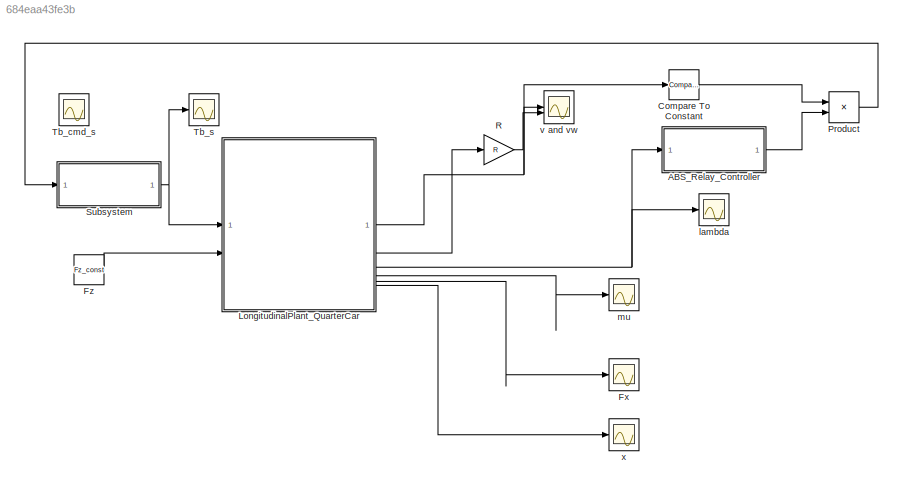
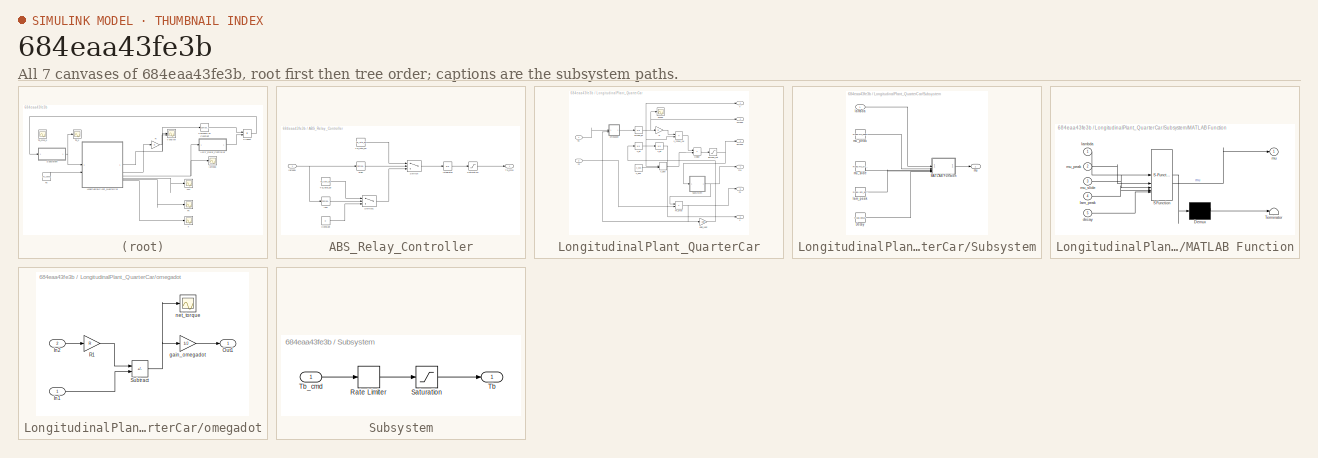
[diagram: thumbnail index - all 7 canvases of the model, root first then tree order]
MODEL slx_684eaa43fe3b
KIND model
CONFIG AbsTol = auto
CONFIG EnableMultiTasking = off
CONFIG FixedStep = auto
CONFIG InitFcn = run('LongitudinalABS.m')\n
CONFIG MaxStep = auto
CONFIG MinStep = auto
CONFIG RelTol = 1e-3
CONFIG SampleTimeConstraint = Unconstrained
CONFIG SolverName = VariableStepAuto
CONFIG StartTime = 0.0
CONFIG StopTime = 10.0
BLOCK [SubSystem] ABS_Relay_Controller
BLOCK [Constant] ABS_Relay_Controller/Constant
  Value = 0
BLOCK [Integrator] ABS_Relay_Controller/Integrator
BLOCK [Saturate] ABS_Relay_Controller/Saturation
  LowerLimit = 0
  UpperLimit = Tb_max
BLOCK [Switch] ABS_Relay_Controller/Switch
  Criteria = u2 > Threshold
  InputSameDT = off
  SaturateOnIntegerOverflow = off
  Threshold = 0.5
BLOCK [Switch] ABS_Relay_Controller/Switch1
  Criteria = u2 > Threshold
  InputSameDT = off
  SaturateOnIntegerOverflow = off
  Threshold = 0.5
BLOCK [Outport] ABS_Relay_Controller/Tb_cmd
BLOCK [Constant] ABS_Relay_Controller/Tb_rate_dn
  Value = Tb_rate_dn
BLOCK [Constant] ABS_Relay_Controller/Tb_rate_up
  Value = Tb_rate_up
BLOCK [Reference] ABS_Relay_Controller/high  REF=simulink/Logic and Bit
Operations/Compare
To Constant
  SourceBlock = simulink/Logic and Bit\nOperations/Compare\nTo Constant
  SourceType = Compare To Constant
BLOCK [Inport] ABS_Relay_Controller/lambda
BLOCK [Reference] ABS_Relay_Controller/low  REF=simulink/Logic and Bit
Operations/Compare
To Constant
  SourceBlock = simulink/Logic and Bit\nOperations/Compare\nTo Constant
  SourceType = Compare To Constant
BLOCK [Reference] Compare To Constant  REF=simulink/Logic and Bit
Operations/Compare
To Constant
  SourceBlock = simulink/Logic and Bit\nOperations/Compare\nTo Constant
  SourceType = Compare To Constant
BLOCK [Scope] Fx
  ActiveDisplayYMaximum = 4124.6604607848822
  ActiveDisplayYMinimum = -458.29560675387569
  DataLoggingVariableName = ScopeData4
  Floating = off
  GraphicalSettings = {"Style":{"BackgroundColor":[0.12941176470588237,0.12941176470588237,0.12941176470588237],"AxesColor":[0.07058823529411765,0.07058823529411765,0.07058823529411765],"LabelsColor":[0.8509803921568627,0.8509803921568627,0.8509803921568627],"PreserveColors":false,"Visible":[true],"LineStyle":["-"],"LineWidth":[1.5],"BarWidth":[0.9],"LineColor":["auto"],"LineFaceAlpha":[1],"LineEdgeAlpha":[1],"Marker":...<+2043ch>
  MultipleDisplayCache = [{"MaxYLimMag":4124.6604607848822,"MaxYLimReal":4124.6604607848822,"MinYLimMag":0,"MinYLimReal":-458.29560675387569,"PlotAsMagnitudePhase":false,"ShowGrid":true,"ShowLegend":false,"Title":"%<SignalLabel>","YLabel":""}]
  NumInputPorts = 1
  ScopeFrameLocation = window
  WasSavedAsWebScope = on
  WindowPosition = [573.000000,323.000000,560.000000,420.000000,]
BLOCK [Constant] Fz
  Value = Fz_const
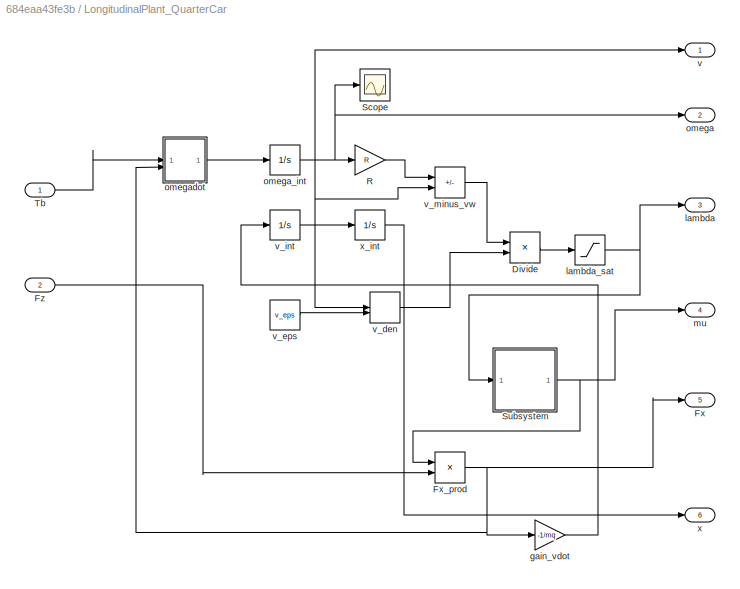
BLOCK [SubSystem] LongitudinalPlant_QuarterCar
BLOCK [Product] LongitudinalPlant_QuarterCar/Divide
  Inputs = */
BLOCK [Outport] LongitudinalPlant_QuarterCar/Fx
  Port = 5
BLOCK [Product] LongitudinalPlant_QuarterCar/Fx_prod
BLOCK [Inport] LongitudinalPlant_QuarterCar/Fz
  Port = 2
BLOCK [Gain] LongitudinalPlant_QuarterCar/R
  Gain = R
BLOCK [Scope] LongitudinalPlant_QuarterCar/Scope
  ActiveDisplayYMaximum = 104.1888196594448
  ActiveDisplayYMinimum = -6.0492755786504944
  DataLoggingVariableName = ScopeData6
  Floating = off
  GraphicalSettings = {"AxesScalingProperties":{"AlignXAxis":"Center","AlignYAxis":"Center","AutoScaleXAxisLimits":false,"AxesScaling":"Manual","AxesScalingNumUpdates":10,"ExpandOnly":true,"ScaleAxesLimitsAtStop":false,"XAxisDataRange":100,"YAxisDataRange":80},"DisplayProperties":{"ColorOrder":["auto","auto","auto","auto","auto","auto","auto","auto","auto","auto","auto","auto","auto","auto","auto","auto","auto","auto",...<+1914ch>
  MultipleDisplayCache = [{"MaxYLimMag":104.17500000000001,"MaxYLimReal":104.1888196594448,"MinYLimMag":0,"MinYLimReal":-6.0492755786504944,"PlotAsMagnitudePhase":false,"ShowGrid":true,"ShowLegend":false,"Title":"%<SignalLabel>","YLabel":""}]
  NumInputPorts = 1
  ScopeFrameLocation = window
  WasSavedAsWebScope = on
  WindowPosition = [573.000000,323.000000,560.000000,420.000000,]
BLOCK [SubSystem] LongitudinalPlant_QuarterCar/Subsystem
BLOCK [Constant] LongitudinalPlant_QuarterCar/Subsystem/Decay
  Value = Road.decay
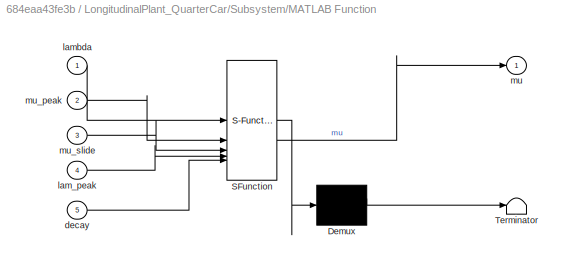
BLOCK [SubSystem] LongitudinalPlant_QuarterCar/Subsystem/MATLAB Function
  ErrorFcn = Stateflow.Translate.translate
  PermitHierarchicalResolution = ExplicitOnly
  SFBlockType = MATLAB Function
  TreatAsAtomicUnit = on
BLOCK [Demux] LongitudinalPlant_QuarterCar/Subsystem/MATLAB Function/ Demux 
  Outputs = 1
BLOCK [S-Function] LongitudinalPlant_QuarterCar/Subsystem/MATLAB Function/ SFunction 
  EnableBusSupport = off
  FunctionName = sf_sfun
  PortCounts = [5 2]
  SFcnIsStateOwnerBlock = off
  SFunctionDeploymentMode = off
  Tag = Stateflow S-Function 2
BLOCK [Terminator] LongitudinalPlant_QuarterCar/Subsystem/MATLAB Function/ Terminator 
BLOCK [Inport] LongitudinalPlant_QuarterCar/Subsystem/MATLAB Function/decay
  Port = 5
BLOCK [Inport] LongitudinalPlant_QuarterCar/Subsystem/MATLAB Function/lam_peak
  Port = 4
BLOCK [Inport] LongitudinalPlant_QuarterCar/Subsystem/MATLAB Function/lambda
BLOCK [Outport] LongitudinalPlant_QuarterCar/Subsystem/MATLAB Function/mu
BLOCK [Inport] LongitudinalPlant_QuarterCar/Subsystem/MATLAB Function/mu_peak
  Port = 2
BLOCK [Inport] LongitudinalPlant_QuarterCar/Subsystem/MATLAB Function/mu_slide
  Port = 3
BLOCK [Constant] LongitudinalPlant_QuarterCar/Subsystem/lam_peak
  Value = Road.lam_peak
BLOCK [Inport] LongitudinalPlant_QuarterCar/Subsystem/lambda
BLOCK [Outport] LongitudinalPlant_QuarterCar/Subsystem/mu
BLOCK [Constant] LongitudinalPlant_QuarterCar/Subsystem/mu_peak
  Value = Road.mu_peak
BLOCK [Constant] LongitudinalPlant_QuarterCar/Subsystem/mu_slide
  Value = Road.mu_slide
BLOCK [Inport] LongitudinalPlant_QuarterCar/Tb
BLOCK [Gain] LongitudinalPlant_QuarterCar/gain_vdot
  Gain = -1/mq
BLOCK [Outport] LongitudinalPlant_QuarterCar/lambda
  Port = 3
BLOCK [Saturate] LongitudinalPlant_QuarterCar/lambda_sat
  LowerLimit = 0
  UpperLimit = 1
BLOCK [Outport] LongitudinalPlant_QuarterCar/mu
  Port = 4
BLOCK [Outport] LongitudinalPlant_QuarterCar/omega
  Port = 2
BLOCK [Integrator] LongitudinalPlant_QuarterCar/omega_int
  InitialCondition = omega0
  LimitOutput = on
  LowerSaturationLimit = 0
BLOCK [SubSystem] LongitudinalPlant_QuarterCar/omegadot
BLOCK [Inport] LongitudinalPlant_QuarterCar/omegadot/In1
BLOCK [Inport] LongitudinalPlant_QuarterCar/omegadot/In2
  Port = 2
BLOCK [Outport] LongitudinalPlant_QuarterCar/omegadot/Out1
BLOCK [Gain] LongitudinalPlant_QuarterCar/omegadot/R1
  Gain = R
BLOCK [Sum] LongitudinalPlant_QuarterCar/omegadot/Subtract
  IconShape = rectangular
  Inputs = +-
BLOCK [Gain] LongitudinalPlant_QuarterCar/omegadot/gain_omegadot
  Gain = 1/J
BLOCK [Scope] LongitudinalPlant_QuarterCar/omegadot/net_torque
  ActiveDisplayYMaximum = 1
  ActiveDisplayYMinimum = -1
  DataLoggingVariableName = ScopeData21
  Floating = off
  GraphicalSettings = {"Style":{"BackgroundColor":[0.12941176470588237,0.12941176470588237,0.12941176470588237],"AxesColor":[0.07058823529411765,0.07058823529411765,0.07058823529411765],"LabelsColor":[0.8509803921568627,0.8509803921568627,0.8509803921568627],"PreserveColors":false,"Visible":[true],"LineStyle":["-"],"LineWidth":[1.5],"BarWidth":[0.9],"LineColor":["auto"],"LineFaceAlpha":[1],"LineEdgeAlpha":[1],"Marker":...<+1994ch>
  MultipleDisplayCache = [{"MaxYLimMag":1,"MaxYLimReal":1,"MinYLimMag":0,"MinYLimReal":-1,"PlotAsMagnitudePhase":false,"ShowGrid":true,"ShowLegend":false,"Title":"%<SignalLabel>","YLabel":""}]
  NumInputPorts = 1
  ScopeFrameLocation = window
  WasSavedAsWebScope = on
  WindowPosition = [573.000000,323.000000,560.000000,420.000000,]
BLOCK [Outport] LongitudinalPlant_QuarterCar/v
BLOCK [MinMax] LongitudinalPlant_QuarterCar/v_den
  Function = max
  Inputs = 2
BLOCK [Constant] LongitudinalPlant_QuarterCar/v_eps
  Value = v_eps
BLOCK [Integrator] LongitudinalPlant_QuarterCar/v_int
  InitialCondition = v0
  LimitOutput = on
  LowerSaturationLimit = 0
BLOCK [Sum] LongitudinalPlant_QuarterCar/v_minus_vw
  IconShape = rectangular
  Inputs = -+
BLOCK [Outport] LongitudinalPlant_QuarterCar/x
  Port = 6
BLOCK [Integrator] LongitudinalPlant_QuarterCar/x_int
BLOCK [Product] Product
BLOCK [Gain] R
  Gain = R
BLOCK [SubSystem] Subsystem
BLOCK [RateLimiter] Subsystem/Rate Limiter
  FallingSlewLimit = Tb_rate_dn
  RisingSlewLimit = Tb_rate_up
  SampleTimeMode = inherited
BLOCK [Saturate] Subsystem/Saturation
  LowerLimit = 0
  UpperLimit = Tb_max
BLOCK [Outport] Subsystem/Tb
BLOCK [Inport] Subsystem/Tb_cmd
BLOCK [Scope] Tb_cmd_s
  ActiveDisplayYMaximum = 2276.3211402073816
  ActiveDisplayYMinimum = -252.92457113415344
  DataLoggingVariableName = ScopeData1
  Floating = off
  GraphicalSettings = {"Style":{"BackgroundColor":[0.12941176470588237,0.12941176470588237,0.12941176470588237],"AxesColor":[0.07058823529411765,0.07058823529411765,0.07058823529411765],"LabelsColor":[0.8509803921568627,0.8509803921568627,0.8509803921568627],"PreserveColors":false,"Visible":[true],"LineStyle":["-"],"LineWidth":[1.5],"BarWidth":[0.9],"LineColor":["auto"],"LineFaceAlpha":[1],"LineEdgeAlpha":[1],"Marker":...<+2019ch>
  MultipleDisplayCache = [{"MaxYLimMag":2276.3211402073816,"MaxYLimReal":2276.3211402073816,"MinYLimMag":0,"MinYLimReal":-252.92457113415344,"PlotAsMagnitudePhase":false,"ShowGrid":true,"ShowLegend":false,"Title":"%<SignalLabel>","YLabel":""}]
  NumInputPorts = 1
  ScopeFrameLocation = window
  WasSavedAsWebScope = on
  WindowPosition = [573.000000,323.000000,560.000000,420.000000,]
BLOCK [Scope] Tb_s
  ActiveDisplayYMaximum = 1485.3763647364945
  ActiveDisplayYMinimum = -165.04181830405491
  DataLoggingVariableName = ScopeData7
  Floating = off
  GraphicalSettings = {"Style":{"BackgroundColor":[0.12941176470588237,0.12941176470588237,0.12941176470588237],"AxesColor":[0.07058823529411765,0.07058823529411765,0.07058823529411765],"LabelsColor":[0.8509803921568627,0.8509803921568627,0.8509803921568627],"PreserveColors":false,"Visible":[true],"LineStyle":["-"],"LineWidth":[1.5],"BarWidth":[0.9],"LineColor":["auto"],"LineFaceAlpha":[1],"LineEdgeAlpha":[1],"Marker":...<+2001ch>
  MultipleDisplayCache = [{"MaxYLimMag":1485.3763647364945,"MaxYLimReal":1485.3763647364945,"MinYLimMag":0,"MinYLimReal":-165.04181830405491,"PlotAsMagnitudePhase":false,"ShowGrid":true,"ShowLegend":false,"Title":"%<SignalLabel>","YLabel":""}]
  NumInputPorts = 1
  ScopeFrameLocation = window
  WasSavedAsWebScope = on
  WindowPosition = [573.000000,323.000000,560.000000,420.000000,]
BLOCK [Scope] lambda
  ActiveDisplayYMaximum = 0.20250000000000568
  ActiveDisplayYMinimum = -0.022500000000000627
  DataLoggingVariableName = ScopeData2
  Floating = off
  GraphicalSettings = {"Style":{"BackgroundColor":[0.12941176470588237,0.12941176470588237,0.12941176470588237],"AxesColor":[0.07058823529411765,0.07058823529411765,0.07058823529411765],"LabelsColor":[0.8509803921568627,0.8509803921568627,0.8509803921568627],"PreserveColors":false,"Visible":[true],"LineStyle":["-"],"LineWidth":[1.5],"BarWidth":[0.9],"LineColor":["auto"],"LineFaceAlpha":[1],"LineEdgeAlpha":[1],"Marker":...<+2047ch>
  MultipleDisplayCache = [{"MaxYLimMag":0.20250000000000568,"MaxYLimReal":0.20250000000000568,"MinYLimMag":0,"MinYLimReal":-0.022500000000000627,"PlotAsMagnitudePhase":false,"ShowGrid":true,"ShowLegend":false,"Title":"%<SignalLabel>","YLabel":""}]
  NumInputPorts = 1
  ScopeFrameLocation = window
  WasSavedAsWebScope = on
  WindowPosition = [573.000000,323.000000,560.000000,420.000000,]
BLOCK [Scope] mu
  ActiveDisplayYMaximum = 0.89055099512649949
  ActiveDisplayYMinimum = 0.01608422823678135
  DataLoggingVariableName = ScopeData3
  Floating = off
  GraphicalSettings = {"AxesScalingProperties":{"AlignXAxis":"Center","AlignYAxis":"Center","AutoScaleXAxisLimits":false,"AxesScaling":"Manual","AxesScalingNumUpdates":10,"ExpandOnly":true,"ScaleAxesLimitsAtStop":false,"XAxisDataRange":100,"YAxisDataRange":80},"DisplayProperties":{"ColorOrder":["auto","auto","auto","auto","auto","auto","auto","auto","auto","auto","auto","auto","auto","auto","auto","auto","auto","auto",...<+1954ch>
  MultipleDisplayCache = [{"MaxYLimMag":0.91107413191863906,"MaxYLimReal":0.89055099512649949,"MinYLimMag":0,"MinYLimReal":0.01608422823678135,"PlotAsMagnitudePhase":false,"ShowGrid":true,"ShowLegend":false,"Title":"%<SignalLabel>","YLabel":""}]
  NumInputPorts = 1
  ScopeFrameLocation = window
  WasSavedAsWebScope = on
  WindowPosition = [573.000000,323.000000,560.000000,420.000000,]
BLOCK [Scope] v and vw
  ActiveDisplayYMaximum = 31.2525
  ActiveDisplayYMinimum = -3.4724999999999993
  Floating = off
  GraphicalSettings = {"Style":{"BackgroundColor":[0.12941176470588237,0.12941176470588237,0.12941176470588237],"AxesColor":[0.07058823529411765,0.07058823529411765,0.07058823529411765],"LabelsColor":[0.8509803921568627,0.8509803921568627,0.8509803921568627],"PreserveColors":false,"Visible":[true,true],"LineStyle":["-","-"],"LineWidth":[1.5,1.5],"BarWidth":[0.9,0.9],"LineColor":["auto","auto"],"LineFaceAlpha":[1,1],"Li...<+2144ch>
  MultipleDisplayCache = [{"MaxYLimMag":31.2525,"MaxYLimReal":31.2525,"MinYLimMag":0,"MinYLimReal":-3.4724999999999993,"PlotAsMagnitudePhase":false,"ShowGrid":true,"ShowLegend":true,"Title":"%<SignalLabel>","YLabel":""}]
  NumInputPorts = 2
  ScopeFrameLocation = window
  ShowLegend = on
  WasSavedAsWebScope = on
  WindowPosition = [573.000000,323.000000,560.000000,420.000000,]
BLOCK [Scope] x
  ActiveDisplayYMaximum = 75.288306682730678
  ActiveDisplayYMinimum = -114.44328033287998
  DataLoggingVariableName = ScopeData5
  Floating = off
  GraphicalSettings = {"Style":{"BackgroundColor":[0.12941176470588237,0.12941176470588237,0.12941176470588237],"AxesColor":[0.07058823529411765,0.07058823529411765,0.07058823529411765],"LabelsColor":[0.8509803921568627,0.8509803921568627,0.8509803921568627],"PreserveColors":false,"Visible":[true],"LineStyle":["-"],"LineWidth":[1.5],"BarWidth":[0.9],"LineColor":["auto"],"LineFaceAlpha":[1],"LineEdgeAlpha":[1],"Marker":...<+2039ch>
  MultipleDisplayCache = [{"MaxYLimMag":99.4899620827549,"MaxYLimReal":75.288306682730678,"MinYLimMag":0,"MinYLimReal":-114.44328033287998,"PlotAsMagnitudePhase":false,"ShowGrid":true,"ShowLegend":false,"Title":"%<SignalLabel>","YLabel":""}]
  NumInputPorts = 1
  ScopeFrameLocation = window
  WasSavedAsWebScope = on
  WindowPosition = [573.000000,323.000000,560.000000,420.000000,]
LINE ABS_Relay_Controller/Constant:1 -> ABS_Relay_Controller/Switch1:3
LINE ABS_Relay_Controller/Integrator:1 -> ABS_Relay_Controller/Saturation:1
LINE ABS_Relay_Controller/Saturation:1 -> ABS_Relay_Controller/Tb_cmd:1
LINE ABS_Relay_Controller/Switch1:1 -> ABS_Relay_Controller/Switch:3
LINE ABS_Relay_Controller/Switch:1 -> ABS_Relay_Controller/Integrator:1
LINE ABS_Relay_Controller/Tb_rate_dn:1 -> ABS_Relay_Controller/Switch:1
LINE ABS_Relay_Controller/Tb_rate_up:1 -> ABS_Relay_Controller/Switch1:1
LINE ABS_Relay_Controller/high:1 -> ABS_Relay_Controller/Switch:2
NET ABS_Relay_Controller/lambda:1 -> ABS_Relay_Controller/high:1, ABS_Relay_Controller/low:1
LINE ABS_Relay_Controller/low:1 -> ABS_Relay_Controller/Switch1:2
LINE ABS_Relay_Controller:1 -> Product:2
LINE Compare To Constant:1 -> Product:1
LINE Fz:1 -> LongitudinalPlant_QuarterCar:2
LINE LongitudinalPlant_QuarterCar/Divide:1 -> LongitudinalPlant_QuarterCar/lambda_sat:1
NET LongitudinalPlant_QuarterCar/Fx_prod:1 -> LongitudinalPlant_QuarterCar/Fx:1, LongitudinalPlant_QuarterCar/gain_vdot:1, LongitudinalPlant_QuarterCar/omegadot:2
LINE LongitudinalPlant_QuarterCar/Fz:1 -> LongitudinalPlant_QuarterCar/Fx_prod:2
LINE LongitudinalPlant_QuarterCar/R:1 -> LongitudinalPlant_QuarterCar/v_minus_vw:1
LINE LongitudinalPlant_QuarterCar/Subsystem/Decay:1 -> LongitudinalPlant_QuarterCar/Subsystem/MATLAB Function:5
LINE LongitudinalPlant_QuarterCar/Subsystem/MATLAB Function:1 -> LongitudinalPlant_QuarterCar/Subsystem/mu:1
LINE LongitudinalPlant_QuarterCar/Subsystem/lam_peak:1 -> LongitudinalPlant_QuarterCar/Subsystem/MATLAB Function:4
LINE LongitudinalPlant_QuarterCar/Subsystem/lambda:1 -> LongitudinalPlant_QuarterCar/Subsystem/MATLAB Function:1
LINE LongitudinalPlant_QuarterCar/Subsystem/mu_peak:1 -> LongitudinalPlant_QuarterCar/Subsystem/MATLAB Function:2
LINE LongitudinalPlant_QuarterCar/Subsystem/mu_slide:1 -> LongitudinalPlant_QuarterCar/Subsystem/MATLAB Function:3
NET LongitudinalPlant_QuarterCar/Subsystem:1 -> LongitudinalPlant_QuarterCar/Fx_prod:1, LongitudinalPlant_QuarterCar/mu:1
LINE LongitudinalPlant_QuarterCar/Tb:1 -> LongitudinalPlant_QuarterCar/omegadot:1
LINE LongitudinalPlant_QuarterCar/gain_vdot:1 -> LongitudinalPlant_QuarterCar/v_int:1
NET LongitudinalPlant_QuarterCar/lambda_sat:1 -> LongitudinalPlant_QuarterCar/Subsystem:1, LongitudinalPlant_QuarterCar/lambda:1
NET LongitudinalPlant_QuarterCar/omega_int:1 -> LongitudinalPlant_QuarterCar/R:1, LongitudinalPlant_QuarterCar/Scope:1, LongitudinalPlant_QuarterCar/omega:1
LINE LongitudinalPlant_QuarterCar/omegadot/In1:1 -> LongitudinalPlant_QuarterCar/omegadot/Subtract:2
LINE LongitudinalPlant_QuarterCar/omegadot/In2:1 -> LongitudinalPlant_QuarterCar/omegadot/R1:1
LINE LongitudinalPlant_QuarterCar/omegadot/R1:1 -> LongitudinalPlant_QuarterCar/omegadot/Subtract:1
NET LongitudinalPlant_QuarterCar/omegadot/Subtract:1 -> LongitudinalPlant_QuarterCar/omegadot/gain_omegadot:1, LongitudinalPlant_QuarterCar/omegadot/net_torque:1
LINE LongitudinalPlant_QuarterCar/omegadot/gain_omegadot:1 -> LongitudinalPlant_QuarterCar/omegadot/Out1:1
LINE LongitudinalPlant_QuarterCar/omegadot:1 -> LongitudinalPlant_QuarterCar/omega_int:1
LINE LongitudinalPlant_QuarterCar/v_den:1 -> LongitudinalPlant_QuarterCar/Divide:2
LINE LongitudinalPlant_QuarterCar/v_eps:1 -> LongitudinalPlant_QuarterCar/v_den:2
NET LongitudinalPlant_QuarterCar/v_int:1 -> LongitudinalPlant_QuarterCar/v:1, LongitudinalPlant_QuarterCar/v_den:1, LongitudinalPlant_QuarterCar/v_minus_vw:2, LongitudinalPlant_QuarterCar/x_int:1
LINE LongitudinalPlant_QuarterCar/v_minus_vw:1 -> LongitudinalPlant_QuarterCar/Divide:1
LINE LongitudinalPlant_QuarterCar/x_int:1 -> LongitudinalPlant_QuarterCar/x:1
NET LongitudinalPlant_QuarterCar:1 -> Compare To Constant:1, v and vw:1
LINE LongitudinalPlant_QuarterCar:2 -> R:1
NET LongitudinalPlant_QuarterCar:3 -> ABS_Relay_Controller:1, lambda:1
LINE LongitudinalPlant_QuarterCar:4 -> mu:1
LINE LongitudinalPlant_QuarterCar:5 -> Fx:1
LINE LongitudinalPlant_QuarterCar:6 -> x:1
LINE Product:1 -> Subsystem:1
LINE R:1 -> v and vw:2
LINE Subsystem/Rate Limiter:1 -> Subsystem/Saturation:1
LINE Subsystem/Saturation:1 -> Subsystem/Tb:1
LINE Subsystem/Tb_cmd:1 -> Subsystem/Rate Limiter:1
NET Subsystem:1 -> LongitudinalPlant_QuarterCar:1, Tb_s:1
note: NET lines group one-source signal fan-out (src -> all destinations, sorted); 1:1 wires keep LINE
CHART LongitudinalPlant_QuarterCar/Subsystem/MATLAB Function states=1 transitions=1
  STATE_LABEL 'eML_blk_kernel()'
  STATE_LABEL 'SCRIPT:\nfunction mu = TireMu(lambda, mu_peak, mu_slide, lam_peak, decay)\n% TireMu: simple physically-plausible mu(slip) curve for braking\n% lambda   : slip ratio in [0..1]\n% mu_peak  : peak friction coefficient\n% mu_slide : sliding friction coefficient at high slip\n% lam_peak : slip at peak friction (~0.1-0.2 dry)\n% decay    : decay shaping parameter (>0)\n\n% clamp inputs (defensive)\nif lambda < 0\n...<+402ch>'
CHART  states=0 transitions=0
